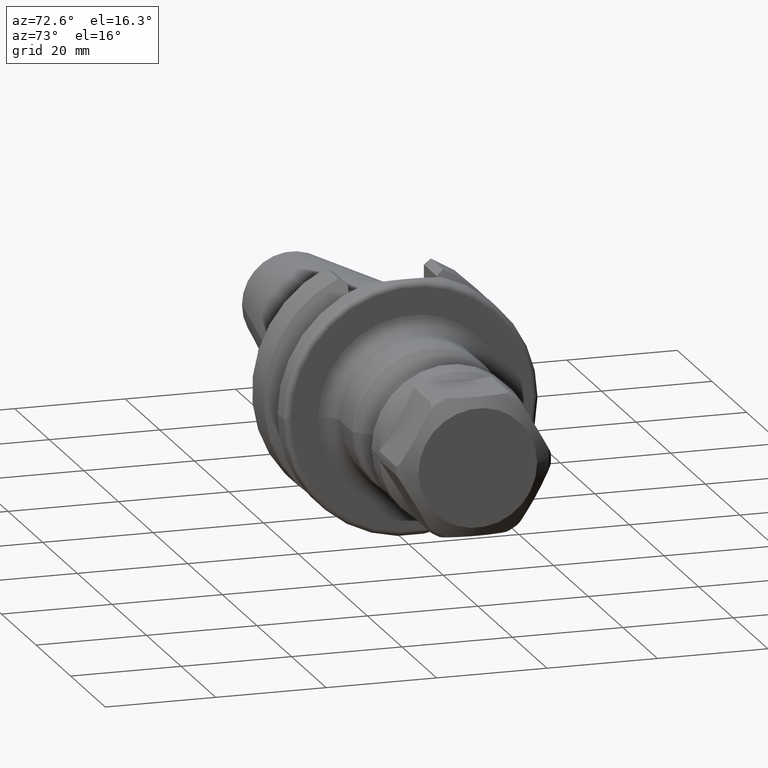
[diagram: clean part render]
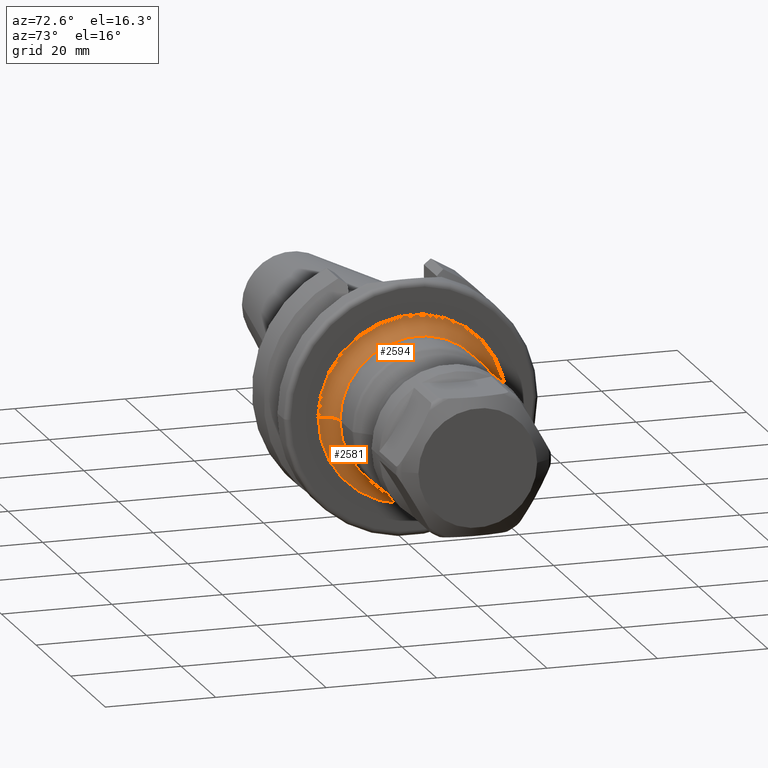
[diagram: same view with one multi-face feature highlighted, each face labeled with its STEP entity id]
A machine part, auxiliary view. The highlighted faces form ONE feature: a constant-radius fillet chain: 2 tangent blend faces with common blend radius 3 mm. The faces share edges in the B-rep.
Their STEP definitions:
[1] entity #2594 (Torus):
#827=CARTESIAN_POINT('',(2.2E1,0.E0,0.E0));
#828=DIRECTION('',(1.E0,0.E0,0.E0));
#829=DIRECTION('',(0.E0,1.E0,0.E0));
#830=AXIS2_PLACEMENT_3D('',#827,#828,#829);
#832=CARTESIAN_POINT('',(2.5E1,-1.7E1,2.224359585412E-12));
#833=DIRECTION('',(0.E0,-1.308432528990E-13,-1.E0));
#834=DIRECTION('',(-1.E0,1.184237892934E-13,0.E0));
#835=AXIS2_PLACEMENT_3D('',#832,#833,#834);
#837=CARTESIAN_POINT('',(2.5E1,1.7E1,-2.226413498008E-12));
#838=DIRECTION('',(0.E0,1.309629488189E-13,1.E0));
#839=DIRECTION('',(-1.E0,-1.196080271863E-13,0.E0));
#840=AXIS2_PLACEMENT_3D('',#837,#838,#839);
#847=CARTESIAN_POINT('',(2.5E1,0.E0,0.E0));
#848=DIRECTION('',(1.E0,0.E0,0.E0));
#849=DIRECTION('',(0.E0,1.E0,0.E0));
#850=AXIS2_PLACEMENT_3D('',#847,#848,#849);
#1443=CARTESIAN_POINT('',(2.2E1,-1.7E1,0.E0));
#1444=CARTESIAN_POINT('',(2.2E1,1.7E1,0.E0));
#1445=VERTEX_POINT('',#1443);
#1446=VERTEX_POINT('',#1444);
#1447=CARTESIAN_POINT('',(2.5E1,-1.4E1,0.E0));
#1448=CARTESIAN_POINT('',(2.5E1,1.4E1,0.E0));
#1449=VERTEX_POINT('',#1447);
#1450=VERTEX_POINT('',#1448);
#2582=CARTESIAN_POINT('',(2.5E1,0.E0,0.E0));
#2583=DIRECTION('',(1.E0,0.E0,0.E0));
#2584=DIRECTION('',(0.E0,9.999396827548E-1,-1.098320774049E-2));
#2585=AXIS2_PLACEMENT_3D('',#2582,#2583,#2584);
#2586=TOROIDAL_SURFACE('',#2585,1.7E1,3.E0);
#2587=ORIENTED_EDGE('',*,*,#2562,.F.);
#2588=ORIENTED_EDGE('',*,*,#2577,.T.);
#2590=ORIENTED_EDGE('',*,*,#2589,.T.);
#2591=ORIENTED_EDGE('',*,*,#2573,.F.);
#2592=EDGE_LOOP('',(#2587,#2588,#2590,#2591));
#2593=FACE_OUTER_BOUND('',#2592,.F.);
#2594=ADVANCED_FACE('',(#2593),#2586,.F.);
#831=CIRCLE('',#830,1.7E1);
#836=CIRCLE('',#835,3.E0);
#841=CIRCLE('',#840,3.E0);
#851=CIRCLE('',#850,1.4E1);
#2562=EDGE_CURVE('',#1446,#1445,#831,.T.);
#2573=EDGE_CURVE('',#1445,#1449,#836,.T.);
#2577=EDGE_CURVE('',#1446,#1450,#841,.T.);
#2589=EDGE_CURVE('',#1450,#1449,#851,.T.);
[2] entity #2581 (Torus):
#822=CARTESIAN_POINT('',(2.2E1,0.E0,0.E0));
#823=DIRECTION('',(1.E0,0.E0,0.E0));
#824=DIRECTION('',(0.E0,-1.E0,0.E0));
#825=AXIS2_PLACEMENT_3D('',#822,#823,#824);
#832=CARTESIAN_POINT('',(2.5E1,-1.7E1,2.224359585412E-12));
#833=DIRECTION('',(0.E0,-1.308432528990E-13,-1.E0));
#834=DIRECTION('',(-1.E0,1.184237892934E-13,0.E0));
#835=AXIS2_PLACEMENT_3D('',#832,#833,#834);
#837=CARTESIAN_POINT('',(2.5E1,1.7E1,-2.226413498008E-12));
#838=DIRECTION('',(0.E0,1.309629488189E-13,1.E0));
#839=DIRECTION('',(-1.E0,-1.196080271863E-13,0.E0));
#840=AXIS2_PLACEMENT_3D('',#837,#838,#839);
#871=CARTESIAN_POINT('',(2.5E1,0.E0,0.E0));
#872=DIRECTION('',(1.E0,0.E0,0.E0));
#873=DIRECTION('',(0.E0,-1.E0,0.E0));
#874=AXIS2_PLACEMENT_3D('',#871,#872,#873);
#1443=CARTESIAN_POINT('',(2.2E1,-1.7E1,0.E0));
#1444=CARTESIAN_POINT('',(2.2E1,1.7E1,0.E0));
#1445=VERTEX_POINT('',#1443);
#1446=VERTEX_POINT('',#1444);
#1447=CARTESIAN_POINT('',(2.5E1,-1.4E1,0.E0));
#1448=CARTESIAN_POINT('',(2.5E1,1.4E1,0.E0));
#1449=VERTEX_POINT('',#1447);
#1450=VERTEX_POINT('',#1448);
#2567=CARTESIAN_POINT('',(2.5E1,0.E0,0.E0));
#2568=DIRECTION('',(1.E0,0.E0,0.E0));
#2569=DIRECTION('',(0.E0,-9.999396827548E-1,1.098320774049E-2));
#2570=AXIS2_PLACEMENT_3D('',#2567,#2568,#2569);
#2571=TOROIDAL_SURFACE('',#2570,1.7E1,3.E0);
#2572=ORIENTED_EDGE('',*,*,#2560,.F.);
#2574=ORIENTED_EDGE('',*,*,#2573,.T.);
#2576=ORIENTED_EDGE('',*,*,#2575,.T.);
#2578=ORIENTED_EDGE('',*,*,#2577,.F.);
#2579=EDGE_LOOP('',(#2572,#2574,#2576,#2578));
#2580=FACE_OUTER_BOUND('',#2579,.F.);
#2581=ADVANCED_FACE('',(#2580),#2571,.F.);
#826=CIRCLE('',#825,1.7E1);
#836=CIRCLE('',#835,3.E0);
#841=CIRCLE('',#840,3.E0);
#875=CIRCLE('',#874,1.4E1);
#2560=EDGE_CURVE('',#1445,#1446,#826,.T.);
#2573=EDGE_CURVE('',#1445,#1449,#836,.T.);
#2575=EDGE_CURVE('',#1449,#1450,#875,.T.);
#2577=EDGE_CURVE('',#1446,#1450,#841,.T.);